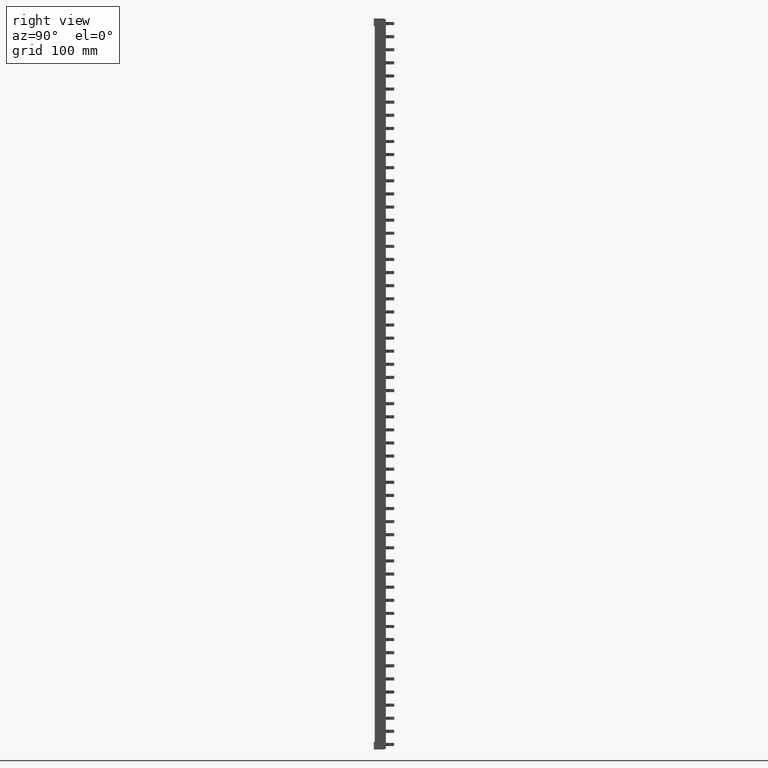
[diagram: clean part render]
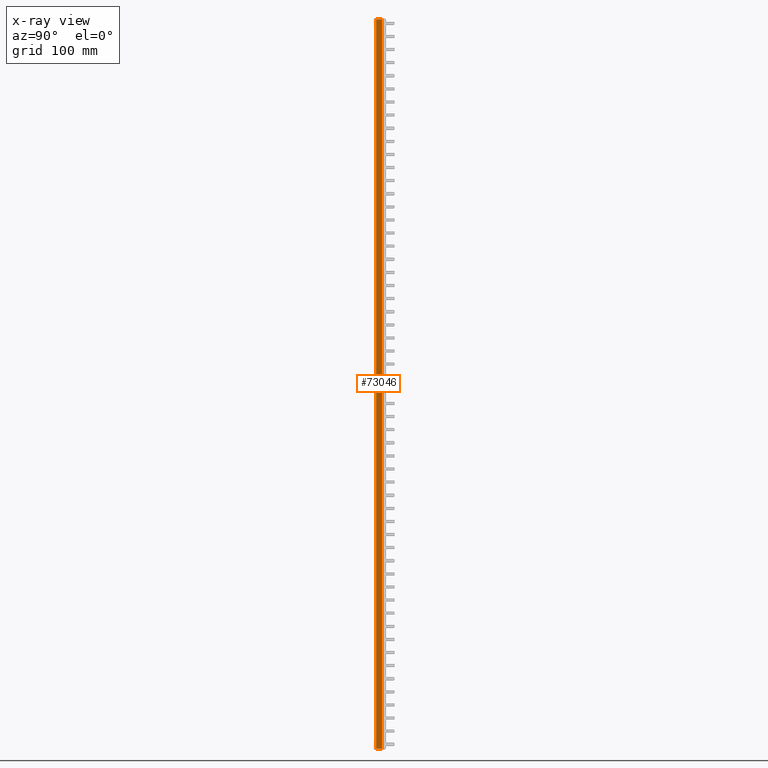
[diagram: x-ray — body ghosted, one internal face saturated and labeled with its STEP entity id]
A machine part, right view, then the same camera in x-ray: the body is ghosted and one INTERNAL B-rep face — a face not visible from any outside direction — is saturated and labeled: STEP entity #73046.
In plain terms, the highlighted planar face has unit normal (1, -0, 0).
Its self-contained STEP definition (entity closure, byte-faithful):
#1864 = EDGE_LOOP ( 'NONE', ( #22693, #22779, #22775, #22720 ) ) ;
#17754 = CARTESIAN_POINT ( 'NONE',  ( 4.000000000000003600, 0.4000000000001606700, -769.8000000000026800 ) ) ;
#17774 = LINE ( 'NONE', #17754, #36586 ) ;
#17776 = DIRECTION ( 'NONE',  ( 0.0000000000000000000, 1.000000000000000000, 0.0000000000000000000 ) ) ;
#17840 = DIRECTION ( 'NONE',  ( 0.0000000000000000000, -0.0000000000000000000, -1.000000000000000000 ) ) ;
#17843 = LINE ( 'NONE', #17870, #36616 ) ;
#17849 = LINE ( 'NONE', #17874, #36598 ) ;
#17858 = DIRECTION ( 'NONE',  ( -0.0000000000000000000, -1.000000000000000000, -0.0000000000000000000 ) ) ;
#17870 = CARTESIAN_POINT ( 'NONE',  ( 4.000000000000003600, 9.799999999999947400, 217.7999999999999800 ) ) ;
#17874 = CARTESIAN_POINT ( 'NONE',  ( 4.000000000000003600, 0.4000000000001606700, 217.7999999999972300 ) ) ;
#17907 = CARTESIAN_POINT ( 'NONE',  ( 4.000000000000003600, 1.799999999999940500, 217.7999999999999800 ) ) ;
#17920 = LINE ( 'NONE', #17907, #36601 ) ;
#17925 = DIRECTION ( 'NONE',  ( 0.0000000000000000000, -0.0000000000000000000, 1.000000000000000000 ) ) ;
#22693 = ORIENTED_EDGE ( 'NONE', *, *, #72430, .T. ) ;
#22720 = ORIENTED_EDGE ( 'NONE', *, *, #72408, .F. ) ;
#22775 = ORIENTED_EDGE ( 'NONE', *, *, #72368, .T. ) ;
#22779 = ORIENTED_EDGE ( 'NONE', *, *, #72440, .F. ) ;
#26630 = DIRECTION ( 'NONE',  ( 1.000000000000000000, -0.0000000000000000000, 0.0000000000000000000 ) ) ;
#26636 = PLANE ( 'NONE',  #59473 ) ;
#26646 = CARTESIAN_POINT ( 'NONE',  ( 4.000000000000003600, 9.799999999999947400, 217.7999999999999800 ) ) ;
#26660 = FACE_OUTER_BOUND ( 'NONE', #1864, .T. ) ;
#26671 = DIRECTION ( 'NONE',  ( 0.0000000000000000000, 0.0000000000000000000, -1.000000000000000000 ) ) ;
#36586 = VECTOR ( 'NONE', #17776, 1000.000000000000000 ) ;
#36598 = VECTOR ( 'NONE', #17858, 1000.000000000000000 ) ;
#36601 = VECTOR ( 'NONE', #17925, 1000.000000000000000 ) ;
#36616 = VECTOR ( 'NONE', #17840, 1000.000000000000000 ) ;
#39217 = VERTEX_POINT ( 'NONE', #61292 ) ;
#39272 = VERTEX_POINT ( 'NONE', #61381 ) ;
#39285 = VERTEX_POINT ( 'NONE', #61416 ) ;
#39292 = VERTEX_POINT ( 'NONE', #61398 ) ;
#59473 = AXIS2_PLACEMENT_3D ( 'NONE', #26646, #26630, #26671 ) ;
#61292 = CARTESIAN_POINT ( 'NONE',  ( 4.000000000000003600, 1.799999999999940500, -769.8000000000023400 ) ) ;
#61381 = CARTESIAN_POINT ( 'NONE',  ( 4.000000000000003600, 9.799999999999947400, 217.7999999999976000 ) ) ;
#61398 = CARTESIAN_POINT ( 'NONE',  ( 4.000000000000003600, 9.799999999999947400, -769.8000000000022300 ) ) ;
#61416 = CARTESIAN_POINT ( 'NONE',  ( 4.000000000000003600, 1.799999999999940500, 217.7999999999975700 ) ) ;
#72368 = EDGE_CURVE ( 'NONE', #39217, #39292, #17774, .T. ) ;
#72408 = EDGE_CURVE ( 'NONE', #39272, #39292, #17843, .T. ) ;
#72430 = EDGE_CURVE ( 'NONE', #39272, #39285, #17849, .T. ) ;
#72440 = EDGE_CURVE ( 'NONE', #39217, #39285, #17920, .T. ) ;
#73046 = ADVANCED_FACE ( 'NONE', ( #26660 ), #26636, .T. ) ;